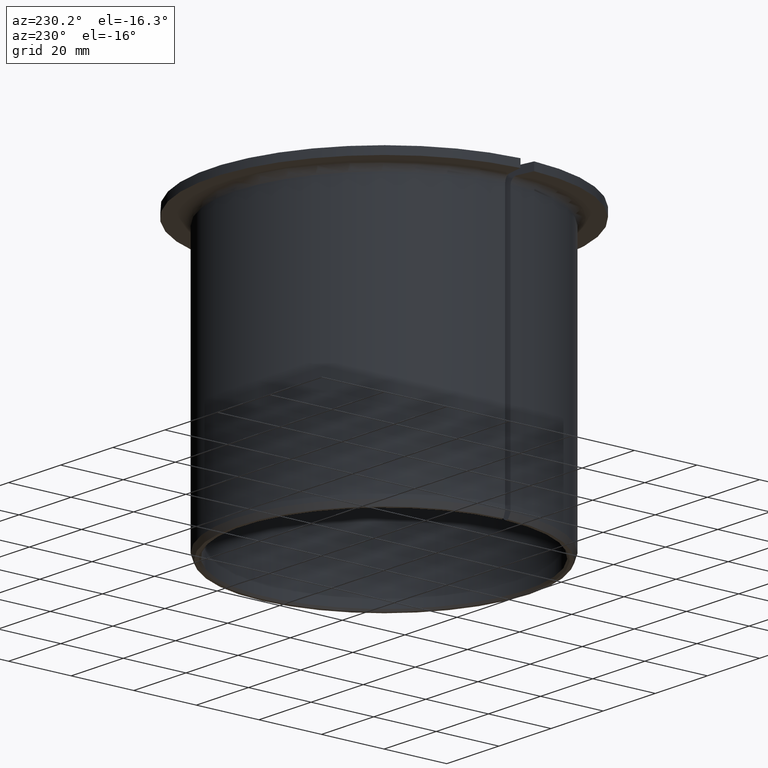
[diagram: clean part render]
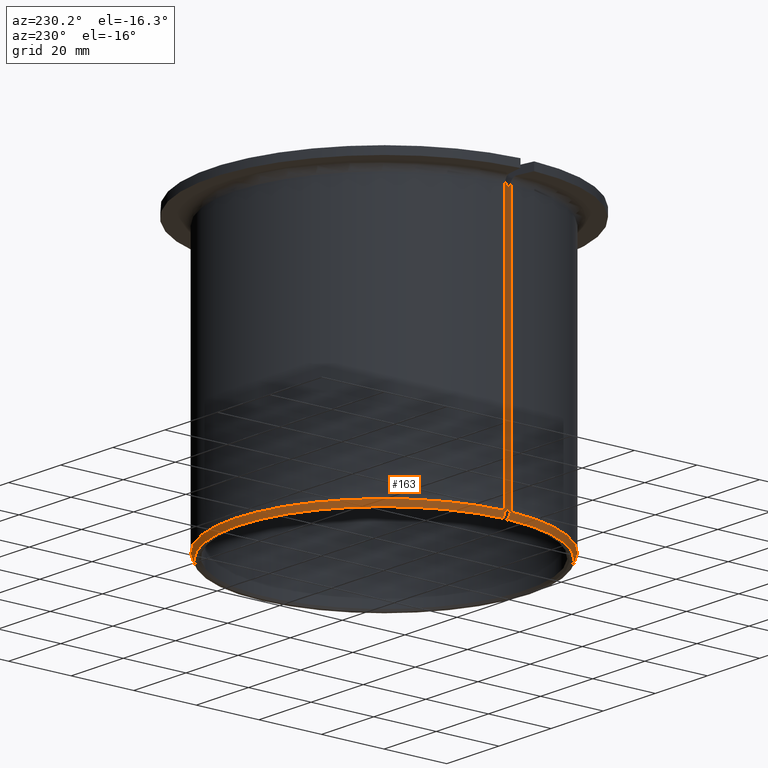
[diagram: same view with one face highlighted and labeled with its STEP entity id]
A machine part, auxiliary view. The second image highlights one B-rep face of the part: STEP entity #163.
In plain terms, the highlighted conical surface has half-angle 25 deg.
Its self-contained STEP definition (entity closure, byte-faithful):
#163=ADVANCED_FACE('',(#187),#188,.T.);
#187=FACE_OUTER_BOUND('',#212,.T.);
#188=CONICAL_SURFACE('',#213,0.046660646215321,0.436332312998585);
#212=EDGE_LOOP('',(#292,#293,#294,#295));
#213=AXIS2_PLACEMENT_3D('',#296,#297,#298);
#292=ORIENTED_EDGE('',*,*,#337,.T.);
#293=ORIENTED_EDGE('',*,*,#341,.T.);
#294=ORIENTED_EDGE('',*,*,#339,.F.);
#295=ORIENTED_EDGE('',*,*,#318,.F.);
#296=CARTESIAN_POINT('',(0.0,0.0,0.0));
#297=DIRECTION('',(-0.0,6.12323399573677E-017,1.0));
#298=DIRECTION('',(0.0,-1.0,6.12323399573677E-017));
#318=EDGE_CURVE('',#353,#355,#356,.T.);
#337=EDGE_CURVE('',#353,#384,#386,.T.);
#339=EDGE_CURVE('',#355,#388,#389,.T.);
#341=EDGE_CURVE('',#384,#388,#391,.T.);
#353=VERTEX_POINT('',#438);
#355=VERTEX_POINT('',#441);
#356=B_SPLINE_CURVE_WITH_KNOTS('',3,(#442,#443,#444,#445),.UNSPECIFIED.,.F.,.F.,(4,4),(2.21162533104358E-007,0.00199076471662806),.UNSPECIFIED.);
#384=VERTEX_POINT('',#516);
#386=CIRCLE('',#519,0.0475);
#388=VERTEX_POINT('',#522);
#389=CIRCLE('',#523,0.046660646215321);
#391=B_SPLINE_CURVE_WITH_KNOTS('',3,(#526,#527,#528,#529),.UNSPECIFIED.,.F.,.F.,(4,4),(2.21162533104358E-007,0.00199076471662806),.UNSPECIFIED.);
#438=CARTESIAN_POINT('',(0.0474918440745789,-0.000880196793837944,0.0018));
#441=CARTESIAN_POINT('',(0.0466548944183203,-0.000732619987944872,6.43083039248804E-019));
#442=CARTESIAN_POINT('',(0.0474918440745789,-0.000880196793837948,0.00179999999999999));
#443=CARTESIAN_POINT('',(0.0472129116263229,-0.000831013477415351,0.00119997566188162));
#444=CARTESIAN_POINT('',(0.0469339293377242,-0.00078182137279559,0.000599975210421917));
#445=CARTESIAN_POINT('',(0.0466548944183203,-0.000732619987944876,-5.01446541423603E-019));
#516=CARTESIAN_POINT('',(0.0474918440745789,0.000880196793837948,0.0018));
#519=AXIS2_PLACEMENT_3D('',#564,#565,#566);
#522=CARTESIAN_POINT('',(0.0466548944183203,0.000732619987944874,-4.48600361614032E-020));
#523=AXIS2_PLACEMENT_3D('',#568,#569,#570);
#526=CARTESIAN_POINT('',(0.0474918440745789,0.000880196793837953,0.00179999999999999));
#527=CARTESIAN_POINT('',(0.0472129116263229,0.000831013477415356,0.00119997566188162));
#528=CARTESIAN_POINT('',(0.0469339293377242,0.000781821372795596,0.000599975210421917));
#529=CARTESIAN_POINT('',(0.0466548944183203,0.000732619987944881,-7.75566804929129E-019));
#564=CARTESIAN_POINT('',(0.0,0.0,0.0018));
#565=DIRECTION('',(0.0,-6.12323399573677E-017,-1.0));
#566=DIRECTION('',(0.0,1.0,-6.12323399573677E-017));
#568=CARTESIAN_POINT('',(0.0,0.0,0.0));
#569=DIRECTION('',(0.0,-6.12323399573677E-017,-1.0));
#570=DIRECTION('',(0.0,1.0,-6.12323399573677E-017));